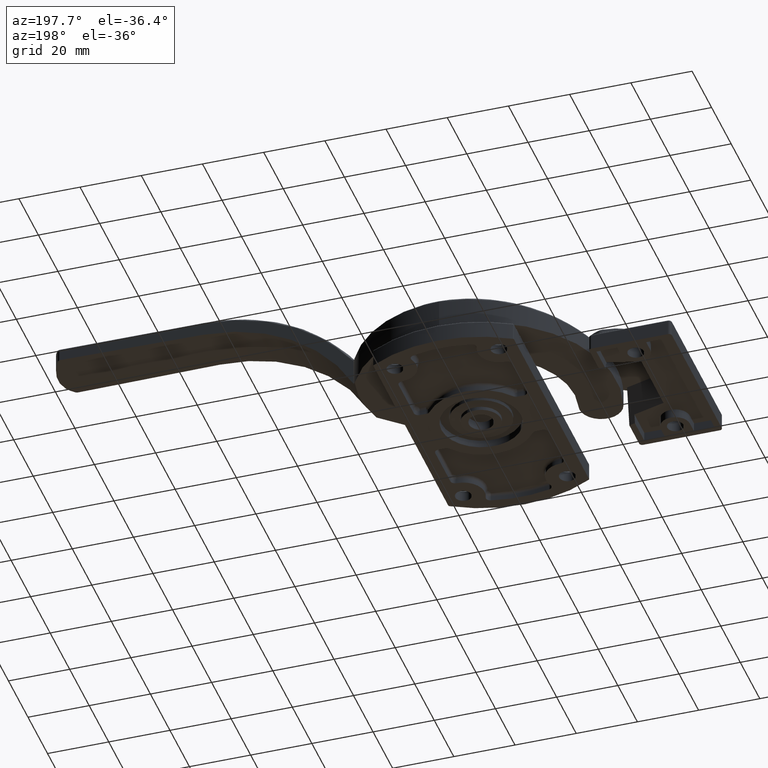
[diagram: clean part render]
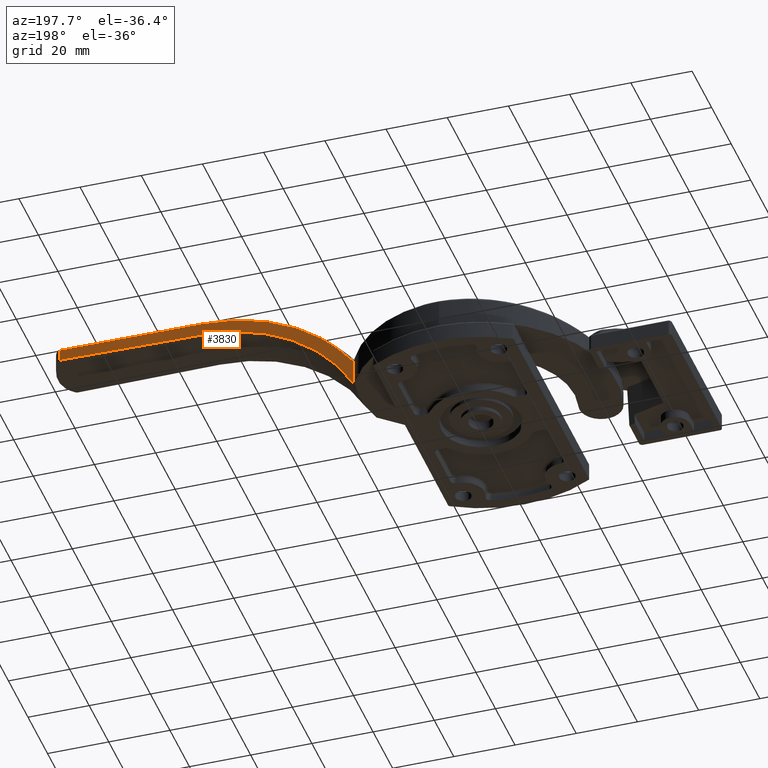
[diagram: same view with one face highlighted and labeled with its STEP entity id]
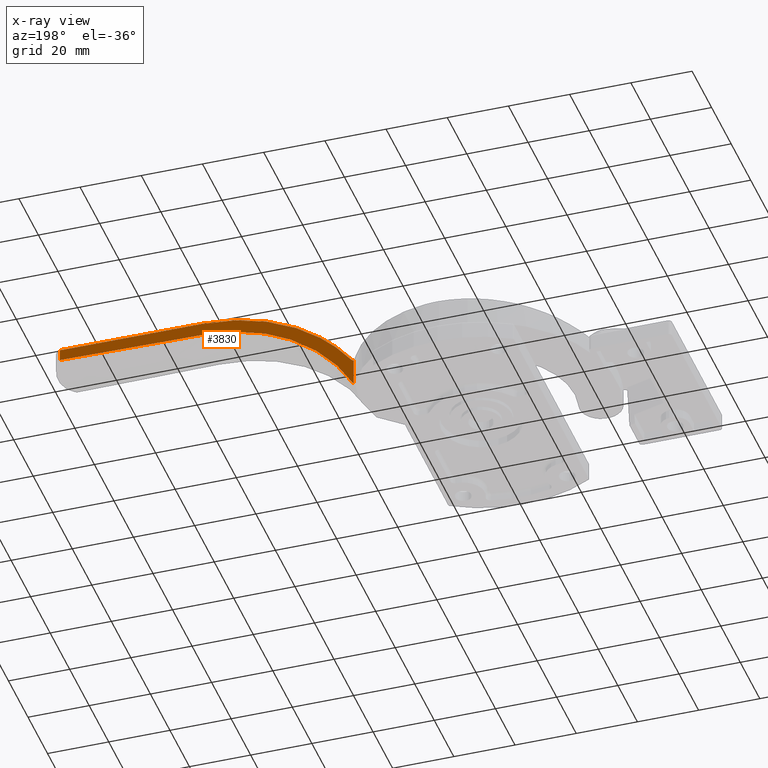
[diagram: x-ray of the same camera — body ghosted, the highlighted face saturated]
A machine part, auxiliary view. The second image highlights one B-rep face of the part: STEP entity #3830.
The next image is the same camera in x-ray: the body ghosted, the highlighted face saturated — about 0% of this face is hidden behind the body in this view.
In plain terms, the highlighted planar face has unit normal (0.0153, -0.9999, -0).
Its self-contained STEP definition (entity closure, byte-faithful):
#34=ELLIPSE('',#4211,3.48293932384007,2.95363401056693);
#36=ELLIPSE('',#4221,2195.21586477304,28.3443845894046);
#63=B_SPLINE_CURVE_WITH_KNOTS('',3,(#6342,#6343,#6344,#6345),
 .UNSPECIFIED.,.F.,.F.,(4,4),(-4.6474050495561,0.),.UNSPECIFIED.);
#65=B_SPLINE_CURVE_WITH_KNOTS('',3,(#6383,#6384,#6385,#6386,#6387,#6388),
 .UNSPECIFIED.,.F.,.F.,(4,1,1,4),(-5.52914317156049,-3.15951038374885,-1.57975519187443,
0.),.UNSPECIFIED.);
#86=B_SPLINE_CURVE_WITH_KNOTS('',3,(#6742,#6743,#6744,#6745,#6746,#6747,
#6748,#6749,#6750,#6751,#6752,#6753),.UNSPECIFIED.,.F.,.F.,(4,2,2,2,2,4),
(-6.00416312747609,-5.27558471010746,-4.53287959966332,-3.00320646721325,
-1.47964728565598,-1.00000000191613E-6),.UNSPECIFIED.);
#278=PLANE('',#4220);
#410=LINE('',#6677,#600);
#412=LINE('',#6730,#602);
#600=VECTOR('',#5042,3.76718165892338);
#602=VECTOR('',#5046,8.95677102238203);
#920=FACE_OUTER_BOUND('',#1200,.T.);
#1200=EDGE_LOOP('',(#3057,#3058,#3059,#3060,#3061,#3062,#3063));
#1778=VERTEX_POINT('',#6305);
#1782=VERTEX_POINT('',#6341);
#1784=VERTEX_POINT('',#6382);
#1786=VERTEX_POINT('',#6417);
#1801=VERTEX_POINT('',#6657);
#1805=VERTEX_POINT('',#6729);
#1807=VERTEX_POINT('',#6740);
#2221=EDGE_CURVE('',#1778,#1782,#63,.T.);
#2224=EDGE_CURVE('',#1782,#1784,#65,.T.);
#2229=EDGE_CURVE('',#1784,#1786,#34,.T.);
#2249=EDGE_CURVE('',#1801,#1778,#410,.T.);
#2255=EDGE_CURVE('',#1786,#1805,#412,.T.);
#2258=EDGE_CURVE('',#1801,#1807,#36,.T.);
#2259=EDGE_CURVE('',#1807,#1805,#86,.T.);
#3057=ORIENTED_EDGE('',*,*,#2229,.F.);
#3058=ORIENTED_EDGE('',*,*,#2224,.F.);
#3059=ORIENTED_EDGE('',*,*,#2221,.F.);
#3060=ORIENTED_EDGE('',*,*,#2249,.F.);
#3061=ORIENTED_EDGE('',*,*,#2258,.T.);
#3062=ORIENTED_EDGE('',*,*,#2259,.T.);
#3063=ORIENTED_EDGE('',*,*,#2255,.F.);
#3830=ADVANCED_FACE('',(#920),#278,.F.);
#4211=AXIS2_PLACEMENT_3D('',#6433,#5024,#5025);
#4220=AXIS2_PLACEMENT_3D('',#6739,#5048,#5049);
#4221=AXIS2_PLACEMENT_3D('',#6741,#5050,#5051);
#5024=DIRECTION('center_axis',(-0.015304329824658,0.999882881885983,-1.02653365512872E-13));
#5025=DIRECTION('ref_axis',(0.929693839693542,0.0142300077503306,0.368058244460445));
#5042=DIRECTION('',(0.,0.,1.));
#5046=DIRECTION('',(0.,0.,-1.));
#5048=DIRECTION('center_axis',(0.0153043298247854,-0.999882881885981,0.));
#5049=DIRECTION('ref_axis',(0.999882881885981,0.0153043298247866,0.));
#5050=DIRECTION('center_axis',(-0.0153043405814483,0.999882881716922,2.97162599323551E-6));
#5051=DIRECTION('ref_axis',(0.99988288020561,0.0153043407218232,-5.50163912938806E-5));
#6305=CARTESIAN_POINT('',(130.459631911443,22.491729059869,34.3317498292513));
#6341=CARTESIAN_POINT('',(83.9923478350876,21.7804951199248,34.6823271129969));
#6342=CARTESIAN_POINT('Ctrl Pts',(130.459631911443,22.491729059869,34.3317498292513));
#6343=CARTESIAN_POINT('Ctrl Pts',(114.970586881016,22.2546518400156,34.4550722514846));
#6344=CARTESIAN_POINT('Ctrl Pts',(99.481489104438,22.017573812823,34.5717541871958));
#6345=CARTESIAN_POINT('Ctrl Pts',(83.9923478350876,21.7804951199248,34.6823271129969));
#6382=CARTESIAN_POINT('',(36.2017391136227,21.0490062109228,11.0644559490455));
#6383=CARTESIAN_POINT('Ctrl Pts',(83.9923478350876,21.7804951199248,34.682327112997));
#6384=CARTESIAN_POINT('Ctrl Pts',(76.0946981541319,21.659612726849,34.738706367146));
#6385=CARTESIAN_POINT('Ctrl Pts',(62.9170209178008,21.4579135854766,32.1654982884858));
#6386=CARTESIAN_POINT('Ctrl Pts',(46.8353333385584,21.2117653062024,22.8286399058488));
#6387=CARTESIAN_POINT('Ctrl Pts',(39.3709059063797,21.097513865914,15.2695970650455));
#6388=CARTESIAN_POINT('Ctrl Pts',(36.2017391136227,21.0490062109228,11.0644559490455));
#6417=CARTESIAN_POINT('',(34.9999999999995,21.030612244898,10.0280026627046));
#6433=CARTESIAN_POINT('Origin',(33.427779759609,21.0065476493823,12.5443770978396));
#6657=CARTESIAN_POINT('',(130.459631911526,22.4917290542913,30.5645681703279));
#6677=CARTESIAN_POINT('',(130.459631911611,22.4917290598716,37.));
#6729=CARTESIAN_POINT('',(35.,21.030612244898,1.07123164032257));
#6730=CARTESIAN_POINT('',(35.,21.030612244898,18.5));
#6739=CARTESIAN_POINT('Origin',(33.,21.,37.));
#6740=CARTESIAN_POINT('',(83.9999999996627,21.78061223005,30.4290563323721));
#6741=CARTESIAN_POINT('Origin',(-385.001936093096,14.6019236516229,58.1446402419015));
#6742=CARTESIAN_POINT('Ctrl Pts',(84.0000000003215,21.7806122449029,30.4290560124193));
#6743=CARTESIAN_POINT('Ctrl Pts',(81.5716876195829,21.7434441982589,30.4223308805276));
#6744=CARTESIAN_POINT('Ctrl Pts',(79.146403037452,21.7063224954712,30.2571979366768));
#6745=CARTESIAN_POINT('Ctrl Pts',(74.2861018858978,21.6319301309066,29.6059606924746));
#6746=CARTESIAN_POINT('Ctrl Pts',(71.8571838722532,21.5947528143848,29.1144143823398));
#6747=CARTESIAN_POINT('Ctrl Pts',(64.5500622734934,21.4829091164446,27.1223129076555));
#6748=CARTESIAN_POINT('Ctrl Pts',(59.8379137464771,21.4107843940787,25.1138348171601));
#6749=CARTESIAN_POINT('Ctrl Pts',(51.1077598138759,21.2771595889879,19.8843450060003));
#6750=CARTESIAN_POINT('Ctrl Pts',(47.1277047878601,21.2162403793978,16.6925601240743));
#6751=CARTESIAN_POINT('Ctrl Pts',(40.2415734549231,21.1108404100161,9.42728292172456));
#6752=CARTESIAN_POINT('Ctrl Pts',(37.3381366361622,21.0664000505535,5.41381133512037));
#6753=CARTESIAN_POINT('Ctrl Pts',(35.,21.030612244898,1.07123164032257));